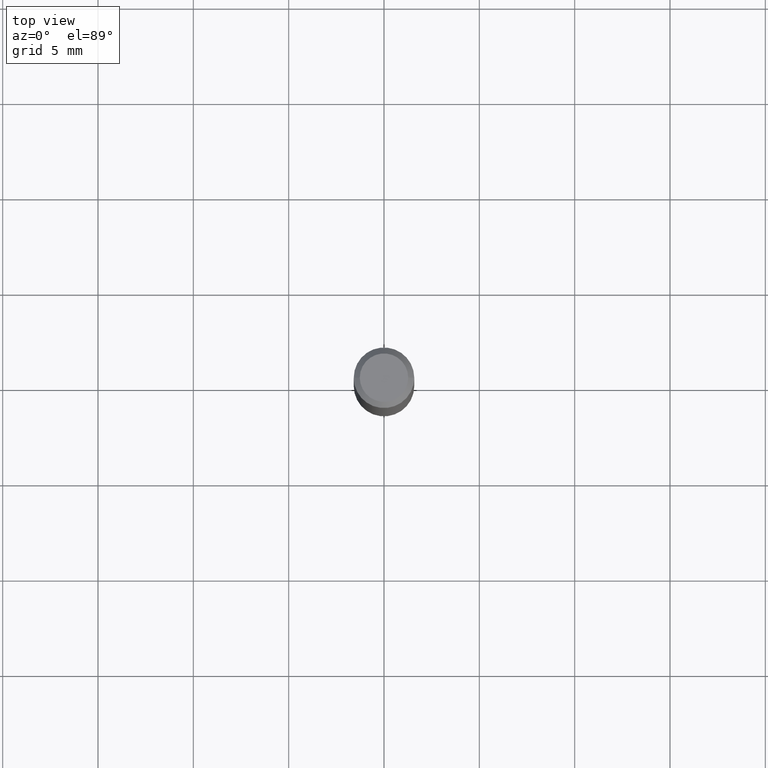
[diagram: clean part render]
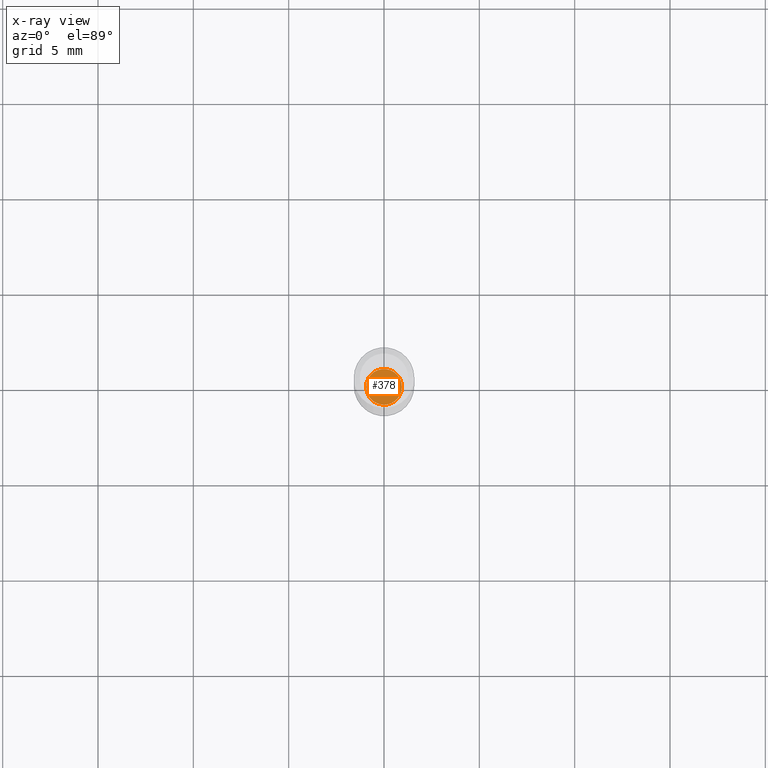
[diagram: x-ray — body ghosted, one internal face saturated and labeled with its STEP entity id]
A machine part, top view, then the same camera in x-ray: the body is ghosted and one INTERNAL B-rep face — a face not visible from any outside direction — is saturated and labeled: STEP entity #378.
In plain terms, the highlighted planar face has unit normal (-0, 0, 1).
Its self-contained STEP definition (entity closure, byte-faithful):
#18 = VERTEX_POINT ( 'NONE', #116 ) ;
#34 = CARTESIAN_POINT ( 'NONE',  ( 0.03690000000000000224, -4.098300795534083495E-15, -1.100000000000000089 ) ) ;
#80 = DIRECTION ( 'NONE',  ( -2.445468806185136597E-29, 3.491481338843145583E-15, 1.000000000000000000 ) ) ;
#88 = CIRCLE ( 'NONE', #207, 0.03690000000000000224 ) ;
#104 = AXIS2_PLACEMENT_3D ( 'NONE', #398, #311, #458 ) ;
#116 = CARTESIAN_POINT ( 'NONE',  ( -0.03690000000000000224, -3.575789976057872409E-15, -1.100000000000000089 ) ) ;
#124 = DIRECTION ( 'NONE',  ( 1.000000000000000000, -6.982962677686261189E-15, 0.000000000000000000 ) ) ;
#163 = AXIS2_PLACEMENT_3D ( 'NONE', #226, #80, #231 ) ;
#170 = ORIENTED_EDGE ( 'NONE', *, *, #473, .F. ) ;
#207 = AXIS2_PLACEMENT_3D ( 'NONE', #320, #466, #124 ) ;
#208 = VERTEX_POINT ( 'NONE', #34 ) ;
#226 = CARTESIAN_POINT ( 'NONE',  ( 2.690015686803650369E-29, -3.840629472727460101E-15, -1.100000000000000089 ) ) ;
#231 = DIRECTION ( 'NONE',  ( 1.000000000000000000, -6.982962677686261189E-15, 0.000000000000000000 ) ) ;
#248 = EDGE_CURVE ( 'NONE', #208, #18, #249, .T. ) ;
#249 = CIRCLE ( 'NONE', #163, 0.03690000000000000224 ) ;
#280 = FACE_OUTER_BOUND ( 'NONE', #449, .T. ) ;
#292 = ORIENTED_EDGE ( 'NONE', *, *, #248, .F. ) ;
#311 = DIRECTION ( 'NONE',  ( -2.438088387897960049E-29, 3.491481338843145188E-15, 1.000000000000000000 ) ) ;
#320 = CARTESIAN_POINT ( 'NONE',  ( 2.690015686803650369E-29, -3.840629472727460101E-15, -1.100000000000000089 ) ) ;
#378 = ADVANCED_FACE ( 'NONE', ( #280 ), #426, .F. ) ;
#398 = CARTESIAN_POINT ( 'NONE',  ( 2.690015686803650369E-29, -3.840629472727460101E-15, -1.100000000000000089 ) ) ;
#426 = PLANE ( 'NONE',  #104 ) ;
#449 = EDGE_LOOP ( 'NONE', ( #292, #170 ) ) ;
#458 = DIRECTION ( 'NONE',  ( 1.000000000000000000, -6.982962677686265922E-15, 4.876176775795935793E-29 ) ) ;
#466 = DIRECTION ( 'NONE',  ( -2.445468806185136597E-29, 3.491481338843145583E-15, 1.000000000000000000 ) ) ;
#473 = EDGE_CURVE ( 'NONE', #18, #208, #88, .T. ) ;